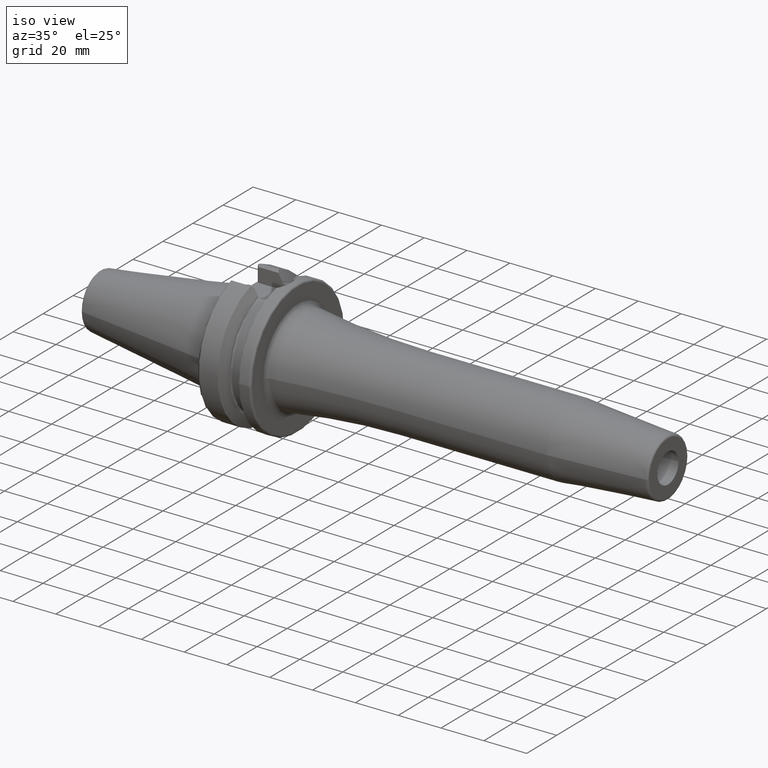
[diagram: clean part render]
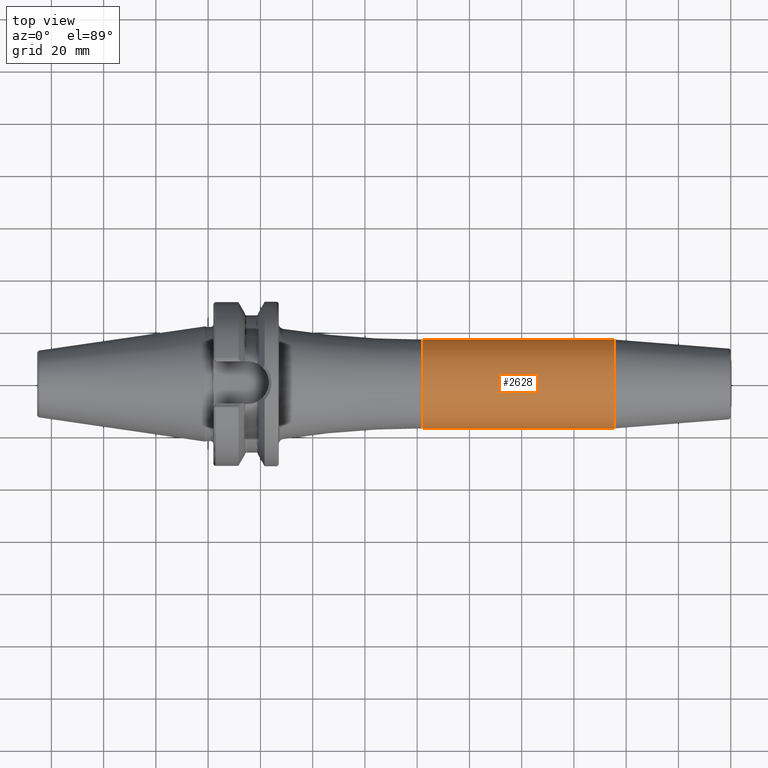
[diagram: tour spotlight — one face highlighted and labeled with its STEP entity id]
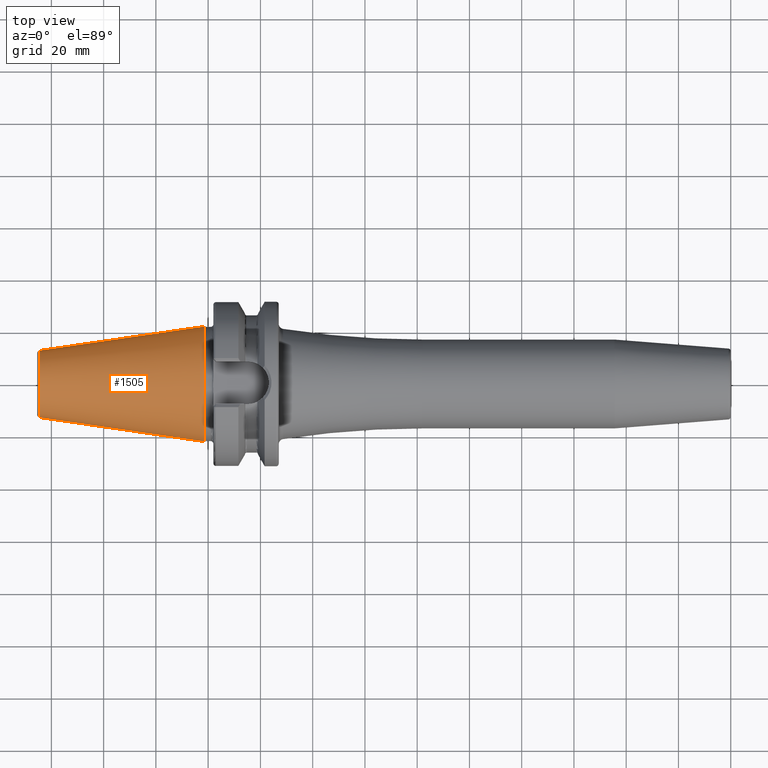
[diagram: tour spotlight — one face highlighted and labeled with its STEP entity id]
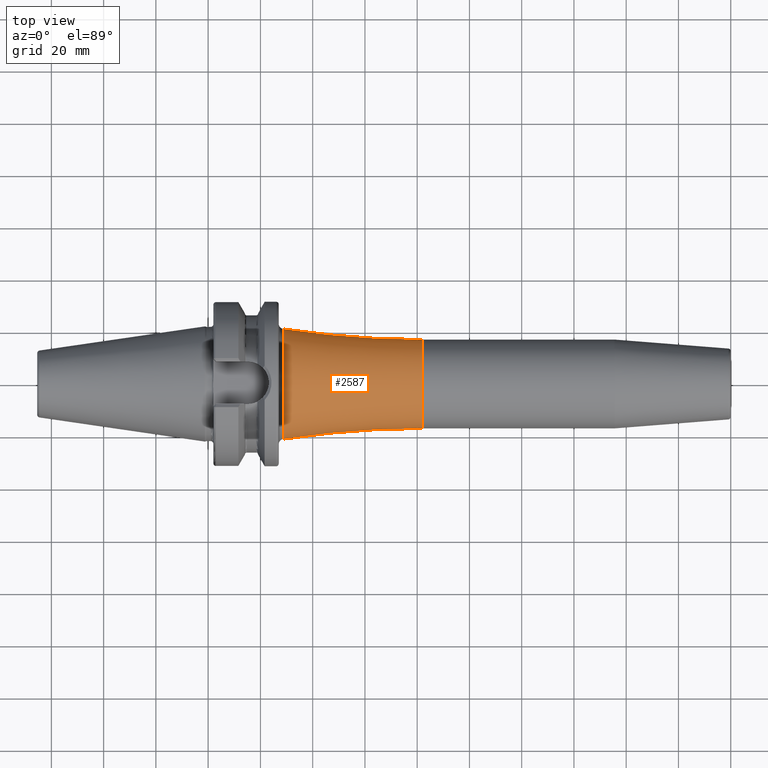
[diagram: tour spotlight — one face highlighted and labeled with its STEP entity id]
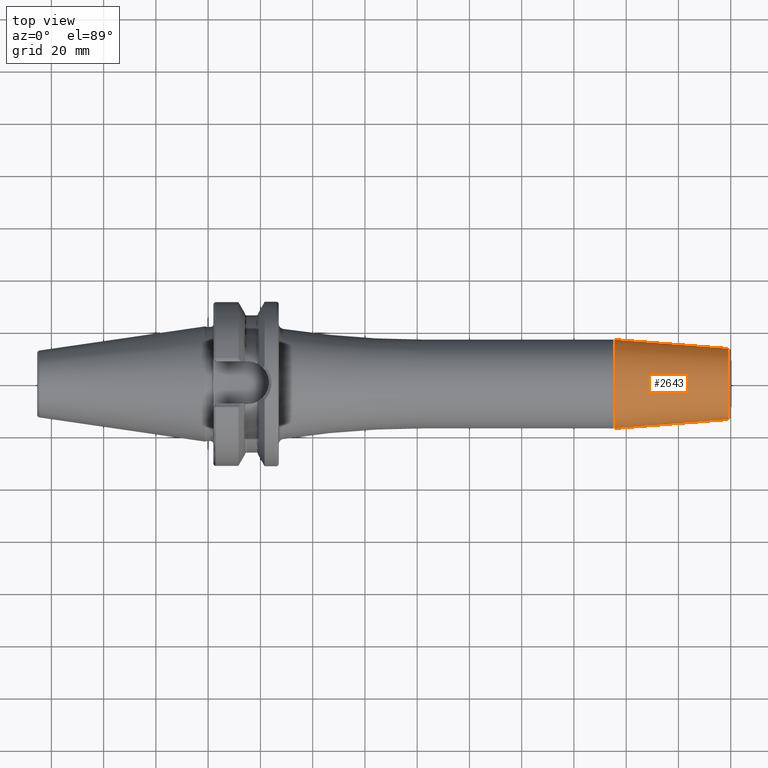
[diagram: tour spotlight — one face highlighted and labeled with its STEP entity id]
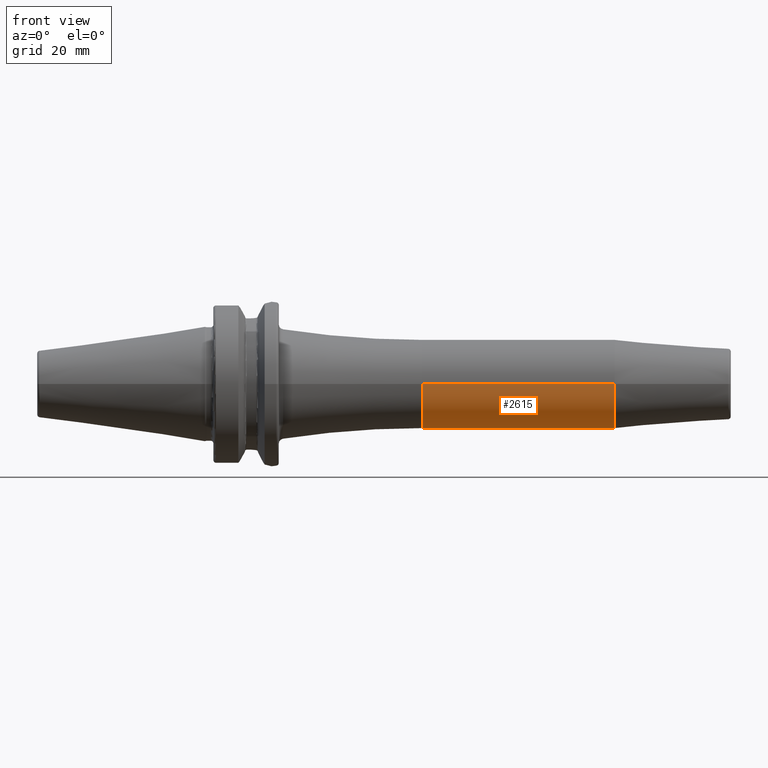
[diagram: tour spotlight — one face highlighted and labeled with its STEP entity id]
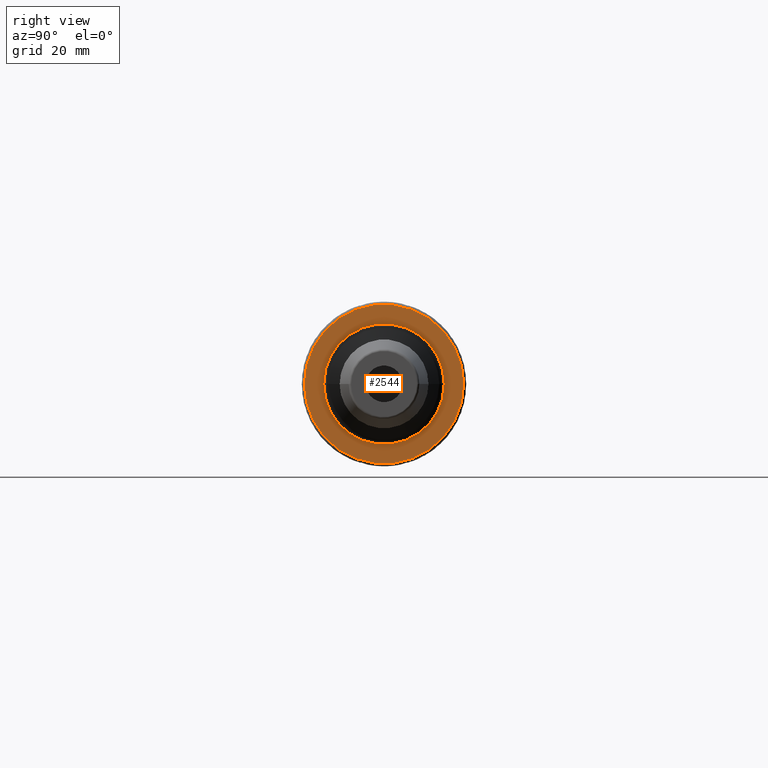
[diagram: tour spotlight — one face highlighted and labeled with its STEP entity id]
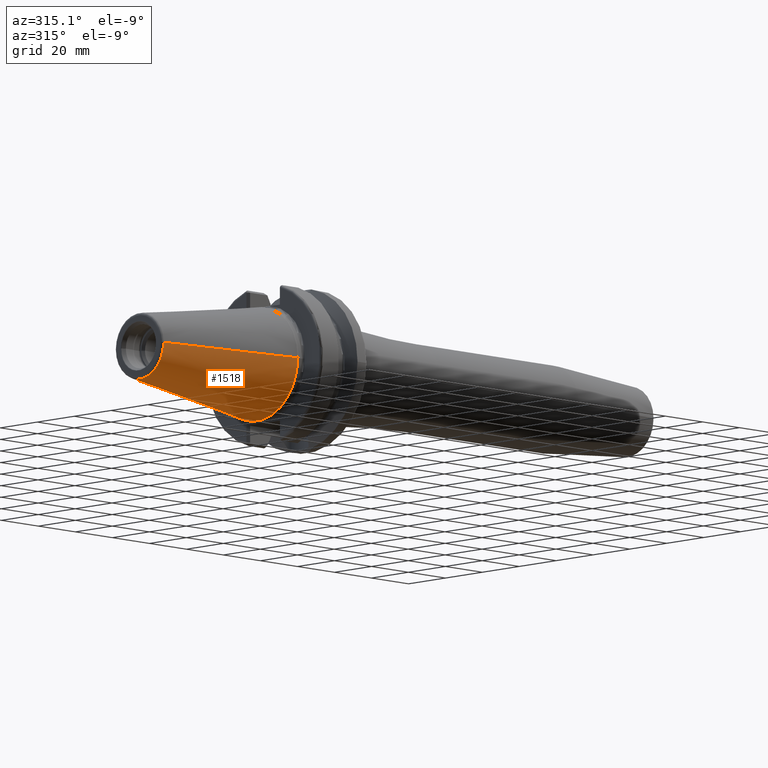
[diagram: tour spotlight — one face highlighted and labeled with its STEP entity id]
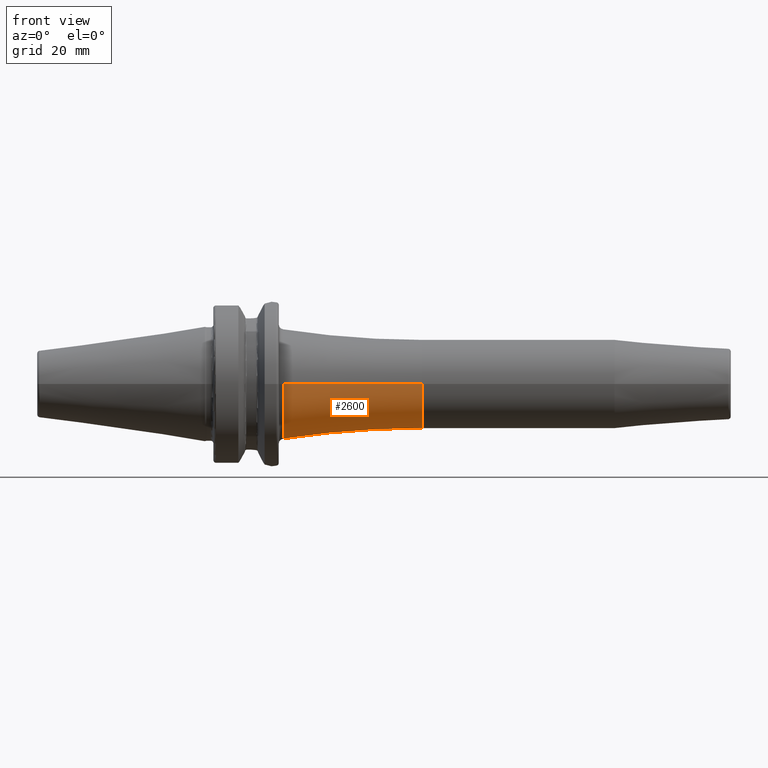
[diagram: tour spotlight — one face highlighted and labeled with its STEP entity id]
A machine part: a face-by-face anatomy tour. The part has 98 B-rep faces; the first image is the clean iso view, then the 8 largest visible faces are spotlighted one at a time (largest first), each with its STEP entity span.

Face 1 — top view, entity #2628. In plain terms, the highlighted cylindrical surface (partial cylindrical patch) has radius 17 mm, axis along (1, 0, 0).
Definition (entity closure, byte-faithful):
#881=DIRECTION('',(-1.E0,0.E0,0.E0));
#882=VECTOR('',#881,7.352828342339E1);
#883=CARTESIAN_POINT('',(1.555282834234E2,-1.7E1,0.E0));
#884=LINE('',#883,#882);
#890=DIRECTION('',(-1.E0,0.E0,0.E0));
#891=VECTOR('',#890,7.352828342339E1);
#892=CARTESIAN_POINT('',(1.555282834234E2,1.7E1,0.E0));
#893=LINE('',#892,#891);
#894=CARTESIAN_POINT('',(8.2E1,0.E0,0.E0));
#895=DIRECTION('',(1.E0,0.E0,0.E0));
#896=DIRECTION('',(0.E0,1.E0,0.E0));
#897=AXIS2_PLACEMENT_3D('',#894,#895,#896);
#899=CARTESIAN_POINT('',(1.555282834234E2,0.E0,0.E0));
#900=DIRECTION('',(1.E0,0.E0,0.E0));
#901=DIRECTION('',(0.E0,1.E0,0.E0));
#902=AXIS2_PLACEMENT_3D('',#899,#900,#901);
#1421=CARTESIAN_POINT('',(1.555282834234E2,1.7E1,0.E0));
#1422=CARTESIAN_POINT('',(1.555282834234E2,-1.7E1,0.E0));
#1423=VERTEX_POINT('',#1421);
#1424=VERTEX_POINT('',#1422);
#1433=CARTESIAN_POINT('',(8.2E1,1.7E1,0.E0));
#1434=CARTESIAN_POINT('',(8.2E1,-1.7E1,0.E0));
#1435=VERTEX_POINT('',#1433);
#1436=VERTEX_POINT('',#1434);
#2616=CARTESIAN_POINT('',(1.835E1,0.E0,0.E0));
#2617=DIRECTION('',(1.E0,0.E0,0.E0));
#2618=DIRECTION('',(0.E0,-1.E0,0.E0));
#2619=AXIS2_PLACEMENT_3D('',#2616,#2617,#2618);
#2620=CYLINDRICAL_SURFACE('',#2619,1.7E1);
#2621=ORIENTED_EDGE('',*,*,#2581,.F.);
#2622=ORIENTED_EDGE('',*,*,#2611,.F.);
#2624=ORIENTED_EDGE('',*,*,#2623,.T.);
#2625=ORIENTED_EDGE('',*,*,#2607,.T.);
#2626=EDGE_LOOP('',(#2621,#2622,#2624,#2625));
#2627=FACE_OUTER_BOUND('',#2626,.F.);
#2628=ADVANCED_FACE('',(#2627),#2620,.T.);
#898=CIRCLE('',#897,1.7E1);
#903=CIRCLE('',#902,1.7E1);
#2581=EDGE_CURVE('',#1435,#1436,#898,.T.);
#2607=EDGE_CURVE('',#1424,#1436,#884,.T.);
#2611=EDGE_CURVE('',#1423,#1435,#893,.T.);
#2623=EDGE_CURVE('',#1423,#1424,#903,.T.);

Face 2 — top view, entity #1505. In plain terms, the highlighted conical surface has half-angle 8.298 deg.
Definition (entity closure, byte-faithful):
#37=CARTESIAN_POINT('',(-6.454431866917E1,0.E0,0.E0));
#38=DIRECTION('',(1.E0,0.E0,0.E0));
#39=DIRECTION('',(0.E0,1.E0,0.E0));
#40=AXIS2_PLACEMENT_3D('',#37,#38,#39);
#42=CARTESIAN_POINT('',(-1.266732031557E0,0.E0,0.E0));
#43=DIRECTION('',(1.E0,0.E0,0.E0));
#44=DIRECTION('',(0.E0,1.E0,0.E0));
#45=AXIS2_PLACEMENT_3D('',#42,#43,#44);
#47=DIRECTION('',(-9.895312636440E-1,-1.443186691705E-1,0.E0));
#48=VECTOR('',#47,6.394703124850E1);
#49=CARTESIAN_POINT('',(-1.266732031557E0,2.204025284980E1,0.E0));
#50=LINE('',#49,#48);
#51=DIRECTION('',(-9.895312636440E-1,1.443186691705E-1,0.E0));
#52=VECTOR('',#51,6.394703124850E1);
#53=CARTESIAN_POINT('',(-1.266732031557E0,-2.204025284980E1,0.E0));
#54=LINE('',#53,#52);
#1190=CARTESIAN_POINT('',(-6.454431866917E1,1.281150240261E1,0.E0));
#1192=VERTEX_POINT('',#1190);
#1194=CARTESIAN_POINT('',(-6.454431866917E1,-1.281150240261E1,0.E0));
#1196=VERTEX_POINT('',#1194);
#1409=CARTESIAN_POINT('',(-1.266732031557E0,2.204025284980E1,0.E0));
#1410=VERTEX_POINT('',#1409);
#1411=CARTESIAN_POINT('',(-1.266732031557E0,-2.204025284980E1,0.E0));
#1412=VERTEX_POINT('',#1411);
#1491=CARTESIAN_POINT('',(-3.290552535036E1,0.E0,0.E0));
#1492=DIRECTION('',(1.E0,0.E0,0.E0));
#1493=DIRECTION('',(0.E0,-1.E0,0.E0));
#1494=AXIS2_PLACEMENT_3D('',#1491,#1492,#1493);
#1495=CONICAL_SURFACE('',#1494,1.742587762621E1,8.297826828206E0);
#1497=ORIENTED_EDGE('',*,*,#1496,.F.);
#1499=ORIENTED_EDGE('',*,*,#1498,.T.);
#1501=ORIENTED_EDGE('',*,*,#1500,.T.);
#1502=ORIENTED_EDGE('',*,*,#1484,.F.);
#1503=EDGE_LOOP('',(#1497,#1499,#1501,#1502));
#1504=FACE_OUTER_BOUND('',#1503,.F.);
#1505=ADVANCED_FACE('',(#1504),#1495,.T.);
#41=CIRCLE('',#40,1.281150240261E1);
#46=CIRCLE('',#45,2.204025284980E1);
#1484=EDGE_CURVE('',#1192,#1196,#41,.T.);
#1496=EDGE_CURVE('',#1410,#1192,#50,.T.);
#1498=EDGE_CURVE('',#1410,#1412,#46,.T.);
#1500=EDGE_CURVE('',#1412,#1196,#54,.T.);

Face 3 — top view, entity #2587. In plain terms, the highlighted toroidal blend (fillet) surface has major radius 367 mm and minor (blend) radius 350 mm.
Definition (entity closure, byte-faithful):
#856=CARTESIAN_POINT('',(2.869540229885E1,0.E0,0.E0));
#857=DIRECTION('',(1.E0,0.E0,0.E0));
#858=DIRECTION('',(0.E0,1.E0,0.E0));
#859=AXIS2_PLACEMENT_3D('',#856,#857,#858);
#866=CARTESIAN_POINT('',(8.2E1,-3.67E2,-8.988907505742E-14));
#867=DIRECTION('',(0.E0,0.E0,1.E0));
#868=DIRECTION('',(0.E0,1.E0,0.E0));
#869=AXIS2_PLACEMENT_3D('',#866,#867,#868);
#871=CARTESIAN_POINT('',(8.2E1,3.67E2,4.494453752871E-14));
#872=DIRECTION('',(0.E0,0.E0,-1.E0));
#873=DIRECTION('',(0.E0,-1.E0,0.E0));
#874=AXIS2_PLACEMENT_3D('',#871,#872,#873);
#894=CARTESIAN_POINT('',(8.2E1,0.E0,0.E0));
#895=DIRECTION('',(1.E0,0.E0,0.E0));
#896=DIRECTION('',(0.E0,1.E0,0.E0));
#897=AXIS2_PLACEMENT_3D('',#894,#895,#896);
#1433=CARTESIAN_POINT('',(8.2E1,1.7E1,0.E0));
#1434=CARTESIAN_POINT('',(8.2E1,-1.7E1,0.E0));
#1435=VERTEX_POINT('',#1433);
#1436=VERTEX_POINT('',#1434);
#1441=CARTESIAN_POINT('',(2.869540229885E1,-2.108292921002E1,0.E0));
#1442=CARTESIAN_POINT('',(2.869540229885E1,2.108292921002E1,0.E0));
#1443=VERTEX_POINT('',#1441);
#1444=VERTEX_POINT('',#1442);
#2573=CARTESIAN_POINT('',(8.2E1,0.E0,0.E0));
#2574=DIRECTION('',(1.E0,0.E0,0.E0));
#2575=DIRECTION('',(0.E0,-1.E0,0.E0));
#2576=AXIS2_PLACEMENT_3D('',#2573,#2574,#2575);
#2577=TOROIDAL_SURFACE('',#2576,3.67E2,3.5E2);
#2578=ORIENTED_EDGE('',*,*,#2567,.F.);
#2580=ORIENTED_EDGE('',*,*,#2579,.F.);
#2582=ORIENTED_EDGE('',*,*,#2581,.T.);
#2584=ORIENTED_EDGE('',*,*,#2583,.T.);
#2585=EDGE_LOOP('',(#2578,#2580,#2582,#2584));
#2586=FACE_OUTER_BOUND('',#2585,.F.);
#2587=ADVANCED_FACE('',(#2586),#2577,.F.);
#860=CIRCLE('',#859,2.108292921002E1);
#870=CIRCLE('',#869,3.5E2);
#875=CIRCLE('',#874,3.5E2);
#898=CIRCLE('',#897,1.7E1);
#2567=EDGE_CURVE('',#1444,#1443,#860,.T.);
#2579=EDGE_CURVE('',#1435,#1444,#875,.T.);
#2581=EDGE_CURVE('',#1435,#1436,#898,.T.);
#2583=EDGE_CURVE('',#1436,#1443,#870,.T.);

Face 4 — top view, entity #2643. In plain terms, the highlighted conical surface has half-angle 4.5 deg.
Definition (entity closure, byte-faithful):
#899=CARTESIAN_POINT('',(1.555282834234E2,0.E0,0.E0));
#900=DIRECTION('',(1.E0,0.E0,0.E0));
#901=DIRECTION('',(0.E0,1.E0,0.E0));
#902=AXIS2_PLACEMENT_3D('',#899,#900,#901);
#904=CARTESIAN_POINT('',(1.990784590957E2,0.E0,0.E0));
#905=DIRECTION('',(-1.E0,0.E0,0.E0));
#906=DIRECTION('',(0.E0,-1.E0,0.E0));
#907=AXIS2_PLACEMENT_3D('',#904,#905,#906);
#924=DIRECTION('',(-9.969173337331E-1,7.845909572785E-2,7.699782046848E-14));
#925=VECTOR('',#924,4.368484145948E1);
#926=CARTESIAN_POINT('',(1.990784590957E2,1.357252684207E1,
-3.361555680333E-12));
#927=LINE('',#926,#925);
#928=DIRECTION('',(-9.969173337331E-1,-7.845909572785E-2,-7.691921293501E-14));
#929=VECTOR('',#928,4.368484145948E1);
#930=CARTESIAN_POINT('',(1.990784590957E2,-1.357252684207E1,
3.358121722696E-12));
#931=LINE('',#930,#929);
#1421=CARTESIAN_POINT('',(1.555282834234E2,1.7E1,0.E0));
#1422=CARTESIAN_POINT('',(1.555282834234E2,-1.7E1,0.E0));
#1423=VERTEX_POINT('',#1421);
#1424=VERTEX_POINT('',#1422);
#1425=CARTESIAN_POINT('',(1.990784590957E2,1.357252684207E1,0.E0));
#1426=CARTESIAN_POINT('',(1.990784590957E2,-1.357252684207E1,0.E0));
#1427=VERTEX_POINT('',#1425);
#1428=VERTEX_POINT('',#1426);
#2629=CARTESIAN_POINT('',(1.773033712596E2,0.E0,0.E0));
#2630=DIRECTION('',(-1.E0,0.E0,0.E0));
#2631=DIRECTION('',(0.E0,1.E0,0.E0));
#2632=AXIS2_PLACEMENT_3D('',#2629,#2630,#2631);
#2633=CONICAL_SURFACE('',#2632,1.528626342104E1,4.5E0);
#2635=ORIENTED_EDGE('',*,*,#2634,.F.);
#2637=ORIENTED_EDGE('',*,*,#2636,.T.);
#2638=ORIENTED_EDGE('',*,*,#2623,.F.);
#2640=ORIENTED_EDGE('',*,*,#2639,.F.);
#2641=EDGE_LOOP('',(#2635,#2637,#2638,#2640));
#2642=FACE_OUTER_BOUND('',#2641,.F.);
#2643=ADVANCED_FACE('',(#2642),#2633,.T.);
#903=CIRCLE('',#902,1.7E1);
#908=CIRCLE('',#907,1.357252684207E1);
#2623=EDGE_CURVE('',#1423,#1424,#903,.T.);
#2634=EDGE_CURVE('',#1428,#1427,#908,.T.);
#2636=EDGE_CURVE('',#1428,#1424,#931,.T.);
#2639=EDGE_CURVE('',#1427,#1423,#927,.T.);

Face 5 — front view, entity #2615. In plain terms, the highlighted cylindrical surface (partial cylindrical patch) has radius 17 mm, axis along (1, 0, 0).
Definition (entity closure, byte-faithful):
#876=CARTESIAN_POINT('',(8.2E1,0.E0,0.E0));
#877=DIRECTION('',(1.E0,0.E0,0.E0));
#878=DIRECTION('',(0.E0,-1.E0,0.E0));
#879=AXIS2_PLACEMENT_3D('',#876,#877,#878);
#881=DIRECTION('',(-1.E0,0.E0,0.E0));
#882=VECTOR('',#881,7.352828342339E1);
#883=CARTESIAN_POINT('',(1.555282834234E2,-1.7E1,0.E0));
#884=LINE('',#883,#882);
#885=CARTESIAN_POINT('',(1.555282834234E2,0.E0,0.E0));
#886=DIRECTION('',(-1.E0,0.E0,0.E0));
#887=DIRECTION('',(0.E0,1.E0,0.E0));
#888=AXIS2_PLACEMENT_3D('',#885,#886,#887);
#890=DIRECTION('',(-1.E0,0.E0,0.E0));
#891=VECTOR('',#890,7.352828342339E1);
#892=CARTESIAN_POINT('',(1.555282834234E2,1.7E1,0.E0));
#893=LINE('',#892,#891);
#1421=CARTESIAN_POINT('',(1.555282834234E2,1.7E1,0.E0));
#1422=CARTESIAN_POINT('',(1.555282834234E2,-1.7E1,0.E0));
#1423=VERTEX_POINT('',#1421);
#1424=VERTEX_POINT('',#1422);
#1433=CARTESIAN_POINT('',(8.2E1,1.7E1,0.E0));
#1434=CARTESIAN_POINT('',(8.2E1,-1.7E1,0.E0));
#1435=VERTEX_POINT('',#1433);
#1436=VERTEX_POINT('',#1434);
#2601=CARTESIAN_POINT('',(1.835E1,0.E0,0.E0));
#2602=DIRECTION('',(1.E0,0.E0,0.E0));
#2603=DIRECTION('',(0.E0,-1.E0,0.E0));
#2604=AXIS2_PLACEMENT_3D('',#2601,#2602,#2603);
#2605=CYLINDRICAL_SURFACE('',#2604,1.7E1);
#2606=ORIENTED_EDGE('',*,*,#2595,.F.);
#2608=ORIENTED_EDGE('',*,*,#2607,.F.);
#2610=ORIENTED_EDGE('',*,*,#2609,.F.);
#2612=ORIENTED_EDGE('',*,*,#2611,.T.);
#2613=EDGE_LOOP('',(#2606,#2608,#2610,#2612));
#2614=FACE_OUTER_BOUND('',#2613,.F.);
#2615=ADVANCED_FACE('',(#2614),#2605,.T.);
#880=CIRCLE('',#879,1.7E1);
#889=CIRCLE('',#888,1.7E1);
#2595=EDGE_CURVE('',#1436,#1435,#880,.T.);
#2607=EDGE_CURVE('',#1424,#1436,#884,.T.);
#2609=EDGE_CURVE('',#1423,#1424,#889,.T.);
#2611=EDGE_CURVE('',#1423,#1435,#893,.T.);

Face 6 — right view, entity #2544. In plain terms, the highlighted planar face has unit normal (1, 0, 0).
Definition (entity closure, byte-faithful):
#816=CARTESIAN_POINT('',(2.7E1,0.E0,0.E0));
#817=DIRECTION('',(1.E0,0.E0,0.E0));
#818=DIRECTION('',(0.E0,1.E0,0.E0));
#819=AXIS2_PLACEMENT_3D('',#816,#817,#818);
#831=CARTESIAN_POINT('',(2.7E1,0.E0,0.E0));
#832=DIRECTION('',(-1.E0,0.E0,0.E0));
#833=DIRECTION('',(0.E0,1.E0,0.E0));
#834=AXIS2_PLACEMENT_3D('',#831,#832,#833);
#836=CARTESIAN_POINT('',(2.7E1,0.E0,0.E0));
#837=DIRECTION('',(1.E0,0.E0,0.E0));
#838=DIRECTION('',(0.E0,-1.E0,0.E0));
#839=AXIS2_PLACEMENT_3D('',#836,#837,#838);
#841=CARTESIAN_POINT('',(2.7E1,0.E0,0.E0));
#842=DIRECTION('',(1.E0,0.E0,0.E0));
#843=DIRECTION('',(0.E0,1.E0,0.E0));
#844=AXIS2_PLACEMENT_3D('',#841,#842,#843);
#1324=CARTESIAN_POINT('',(2.7E1,3.04875E1,0.E0));
#1325=VERTEX_POINT('',#1324);
#1326=CARTESIAN_POINT('',(2.7E1,-3.04875E1,0.E0));
#1327=VERTEX_POINT('',#1326);
#1437=CARTESIAN_POINT('',(2.7E1,-2.305959818596E1,0.E0));
#1438=CARTESIAN_POINT('',(2.7E1,2.305959818596E1,0.E0));
#1439=VERTEX_POINT('',#1437);
#1440=VERTEX_POINT('',#1438);
#2529=CARTESIAN_POINT('',(2.7E1,0.E0,0.E0));
#2530=DIRECTION('',(1.E0,0.E0,0.E0));
#2531=DIRECTION('',(0.E0,-1.E0,0.E0));
#2532=AXIS2_PLACEMENT_3D('',#2529,#2530,#2531);
#2533=PLANE('',#2532);
#2534=ORIENTED_EDGE('',*,*,#2524,.T.);
#2535=ORIENTED_EDGE('',*,*,#2508,.F.);
#2536=EDGE_LOOP('',(#2534,#2535));
#2537=FACE_OUTER_BOUND('',#2536,.F.);
#2539=ORIENTED_EDGE('',*,*,#2538,.T.);
#2541=ORIENTED_EDGE('',*,*,#2540,.T.);
#2542=EDGE_LOOP('',(#2539,#2541));
#2543=FACE_BOUND('',#2542,.F.);
#2544=ADVANCED_FACE('',(#2537,#2543),#2533,.T.);
#820=CIRCLE('',#819,3.04875E1);
#835=CIRCLE('',#834,3.04875E1);
#840=CIRCLE('',#839,2.305959818596E1);
#845=CIRCLE('',#844,2.305959818596E1);
#2508=EDGE_CURVE('',#1325,#1327,#820,.T.);
#2524=EDGE_CURVE('',#1325,#1327,#835,.T.);
#2538=EDGE_CURVE('',#1439,#1440,#840,.T.);
#2540=EDGE_CURVE('',#1440,#1439,#845,.T.);

Face 7 — auxiliary view, entity #1518. In plain terms, the highlighted conical surface has half-angle 8.298 deg.
Definition (entity closure, byte-faithful):
#32=CARTESIAN_POINT('',(-6.454431866917E1,0.E0,0.E0));
#33=DIRECTION('',(-1.E0,0.E0,0.E0));
#34=DIRECTION('',(0.E0,1.E0,0.E0));
#35=AXIS2_PLACEMENT_3D('',#32,#33,#34);
#47=DIRECTION('',(-9.895312636440E-1,-1.443186691705E-1,0.E0));
#48=VECTOR('',#47,6.394703124850E1);
#49=CARTESIAN_POINT('',(-1.266732031557E0,2.204025284980E1,0.E0));
#50=LINE('',#49,#48);
#51=DIRECTION('',(-9.895312636440E-1,1.443186691705E-1,0.E0));
#52=VECTOR('',#51,6.394703124850E1);
#53=CARTESIAN_POINT('',(-1.266732031557E0,-2.204025284980E1,0.E0));
#54=LINE('',#53,#52);
#55=CARTESIAN_POINT('',(-1.266732031557E0,0.E0,0.E0));
#56=DIRECTION('',(-1.E0,0.E0,0.E0));
#57=DIRECTION('',(0.E0,1.E0,0.E0));
#58=AXIS2_PLACEMENT_3D('',#55,#56,#57);
#1190=CARTESIAN_POINT('',(-6.454431866917E1,1.281150240261E1,0.E0));
#1192=VERTEX_POINT('',#1190);
#1194=CARTESIAN_POINT('',(-6.454431866917E1,-1.281150240261E1,0.E0));
#1196=VERTEX_POINT('',#1194);
#1409=CARTESIAN_POINT('',(-1.266732031557E0,2.204025284980E1,0.E0));
#1410=VERTEX_POINT('',#1409);
#1411=CARTESIAN_POINT('',(-1.266732031557E0,-2.204025284980E1,0.E0));
#1412=VERTEX_POINT('',#1411);
#1506=CARTESIAN_POINT('',(-3.290552535036E1,0.E0,0.E0));
#1507=DIRECTION('',(1.E0,0.E0,0.E0));
#1508=DIRECTION('',(0.E0,-1.E0,0.E0));
#1509=AXIS2_PLACEMENT_3D('',#1506,#1507,#1508);
#1510=CONICAL_SURFACE('',#1509,1.742587762621E1,8.297826828206E0);
#1511=ORIENTED_EDGE('',*,*,#1496,.T.);
#1512=ORIENTED_EDGE('',*,*,#1473,.T.);
#1513=ORIENTED_EDGE('',*,*,#1500,.F.);
#1515=ORIENTED_EDGE('',*,*,#1514,.F.);
#1516=EDGE_LOOP('',(#1511,#1512,#1513,#1515));
#1517=FACE_OUTER_BOUND('',#1516,.F.);
#1518=ADVANCED_FACE('',(#1517),#1510,.T.);
#36=CIRCLE('',#35,1.281150240261E1);
#59=CIRCLE('',#58,2.204025284980E1);
#1473=EDGE_CURVE('',#1192,#1196,#36,.T.);
#1496=EDGE_CURVE('',#1410,#1192,#50,.T.);
#1500=EDGE_CURVE('',#1412,#1196,#54,.T.);
#1514=EDGE_CURVE('',#1410,#1412,#59,.T.);

Face 8 — front view, entity #2600. In plain terms, the highlighted toroidal blend (fillet) surface has major radius 367 mm and minor (blend) radius 350 mm.
Definition (entity closure, byte-faithful):
#861=CARTESIAN_POINT('',(2.869540229885E1,0.E0,0.E0));
#862=DIRECTION('',(1.E0,0.E0,0.E0));
#863=DIRECTION('',(0.E0,-1.E0,0.E0));
#864=AXIS2_PLACEMENT_3D('',#861,#862,#863);
#866=CARTESIAN_POINT('',(8.2E1,-3.67E2,-8.988907505742E-14));
#867=DIRECTION('',(0.E0,0.E0,1.E0));
#868=DIRECTION('',(0.E0,1.E0,0.E0));
#869=AXIS2_PLACEMENT_3D('',#866,#867,#868);
#871=CARTESIAN_POINT('',(8.2E1,3.67E2,4.494453752871E-14));
#872=DIRECTION('',(0.E0,0.E0,-1.E0));
#873=DIRECTION('',(0.E0,-1.E0,0.E0));
#874=AXIS2_PLACEMENT_3D('',#871,#872,#873);
#876=CARTESIAN_POINT('',(8.2E1,0.E0,0.E0));
#877=DIRECTION('',(1.E0,0.E0,0.E0));
#878=DIRECTION('',(0.E0,-1.E0,0.E0));
#879=AXIS2_PLACEMENT_3D('',#876,#877,#878);
#1433=CARTESIAN_POINT('',(8.2E1,1.7E1,0.E0));
#1434=CARTESIAN_POINT('',(8.2E1,-1.7E1,0.E0));
#1435=VERTEX_POINT('',#1433);
#1436=VERTEX_POINT('',#1434);
#1441=CARTESIAN_POINT('',(2.869540229885E1,-2.108292921002E1,0.E0));
#1442=CARTESIAN_POINT('',(2.869540229885E1,2.108292921002E1,0.E0));
#1443=VERTEX_POINT('',#1441);
#1444=VERTEX_POINT('',#1442);
#2588=CARTESIAN_POINT('',(8.2E1,0.E0,0.E0));
#2589=DIRECTION('',(1.E0,0.E0,0.E0));
#2590=DIRECTION('',(0.E0,-1.E0,0.E0));
#2591=AXIS2_PLACEMENT_3D('',#2588,#2589,#2590);
#2592=TOROIDAL_SURFACE('',#2591,3.67E2,3.5E2);
#2593=ORIENTED_EDGE('',*,*,#2553,.F.);
#2594=ORIENTED_EDGE('',*,*,#2583,.F.);
#2596=ORIENTED_EDGE('',*,*,#2595,.T.);
#2597=ORIENTED_EDGE('',*,*,#2579,.T.);
#2598=EDGE_LOOP('',(#2593,#2594,#2596,#2597));
#2599=FACE_OUTER_BOUND('',#2598,.F.);
#2600=ADVANCED_FACE('',(#2599),#2592,.F.);
#865=CIRCLE('',#864,2.108292921002E1);
#870=CIRCLE('',#869,3.5E2);
#875=CIRCLE('',#874,3.5E2);
#880=CIRCLE('',#879,1.7E1);
#2553=EDGE_CURVE('',#1443,#1444,#865,.T.);
#2579=EDGE_CURVE('',#1435,#1444,#875,.T.);
#2583=EDGE_CURVE('',#1436,#1443,#870,.T.);
#2595=EDGE_CURVE('',#1436,#1435,#880,.T.);